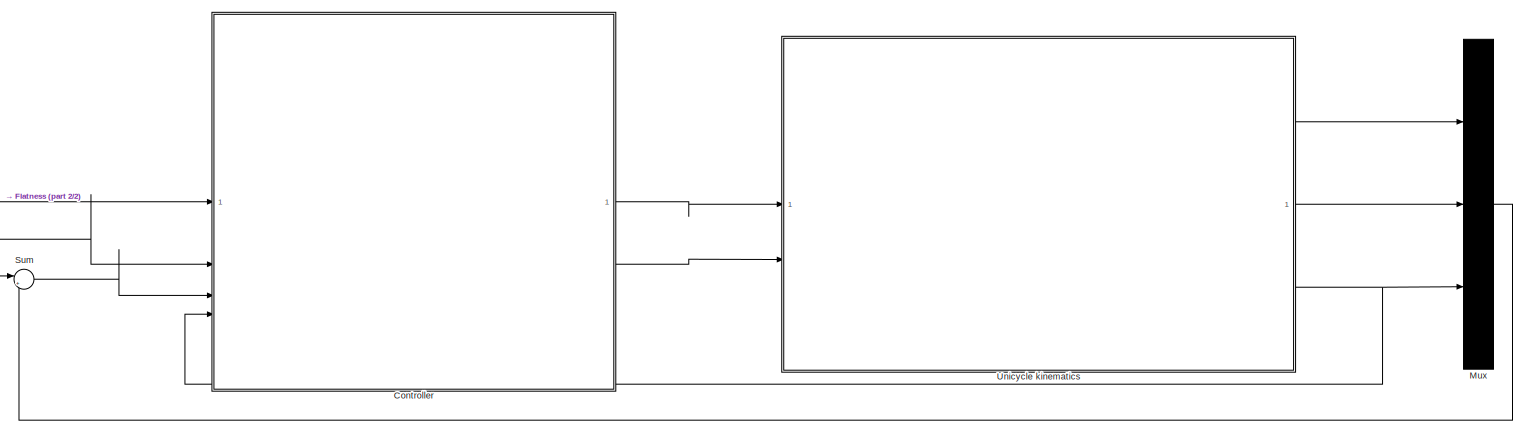
[diagram: root canvas - part 1/2, right side, full height]
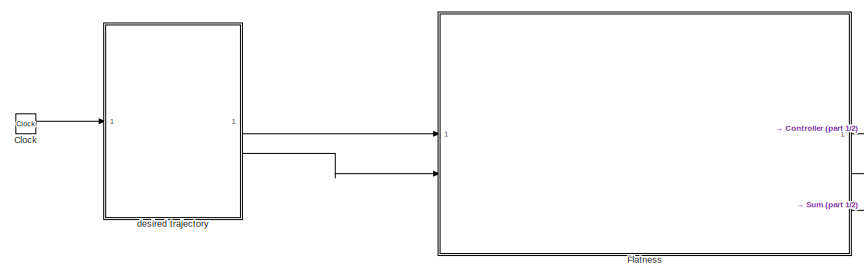
[diagram: root canvas - part 2/2, middle left region]
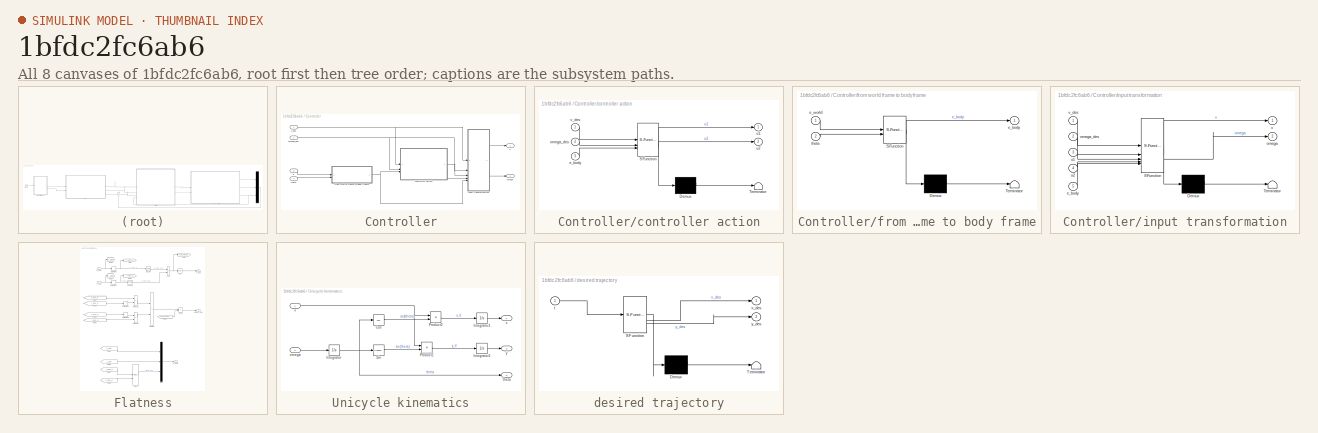
[diagram: thumbnail index - all 8 canvases of the model, root first then tree order]
MODEL slx_1bfdc2fc6ab6
KIND model
CONFIG AbsTol = auto
CONFIG EnableMultiTasking = off
CONFIG FixedStep = auto
CONFIG MaxStep = auto
CONFIG MinStep = auto
CONFIG RelTol = 1e-3
CONFIG SampleTimeConstraint = Unconstrained
CONFIG SolverName = VariableStepAuto
CONFIG StartTime = 0.0
CONFIG StopTime = 10.0
BLOCK [Clock] Clock
BLOCK [SubSystem] Controller
BLOCK [SubSystem] Controller/controller action
  ErrorFcn = Stateflow.Translate.translate
  PermitHierarchicalResolution = ExplicitOnly
  SFBlockType = MATLAB Function
  TreatAsAtomicUnit = on
BLOCK [Demux] Controller/controller action/ Demux 
  Outputs = 1
BLOCK [S-Function] Controller/controller action/ SFunction 
  EnableBusSupport = off
  FunctionName = sf_sfun
  PortCounts = [3 3]
  SFcnIsStateOwnerBlock = off
  SFunctionDeploymentMode = off
  Tag = Stateflow S-Function 1
BLOCK [Terminator] Controller/controller action/ Terminator 
BLOCK [Inport] Controller/controller action/e_body
  Port = 3
BLOCK [Inport] Controller/controller action/omega_des
  Port = 2
BLOCK [Outport] Controller/controller action/u1
BLOCK [Outport] Controller/controller action/u2
  Port = 2
BLOCK [Inport] Controller/controller action/v_des
BLOCK [Inport] Controller/e
  Port = 3
BLOCK [SubSystem] Controller/from world frame to body frame
  ErrorFcn = Stateflow.Translate.translate
  PermitHierarchicalResolution = ExplicitOnly
  SFBlockType = MATLAB Function
  TreatAsAtomicUnit = on
BLOCK [Demux] Controller/from world frame to body frame/ Demux 
  Outputs = 1
BLOCK [S-Function] Controller/from world frame to body frame/ SFunction 
  EnableBusSupport = off
  FunctionName = sf_sfun
  PortCounts = [2 2]
  SFcnIsStateOwnerBlock = off
  SFunctionDeploymentMode = off
  Tag = Stateflow S-Function 2
BLOCK [Terminator] Controller/from world frame to body frame/ Terminator 
BLOCK [Outport] Controller/from world frame to body frame/e_body
BLOCK [Inport] Controller/from world frame to body frame/e_world
BLOCK [Inport] Controller/from world frame to body frame/theta
  Port = 2
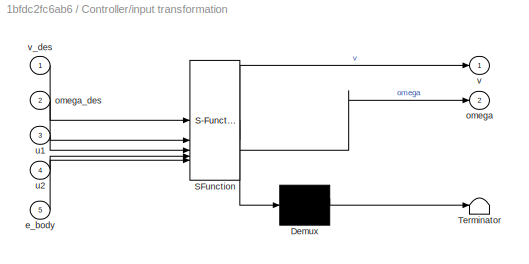
BLOCK [SubSystem] Controller/input transformation
  ErrorFcn = Stateflow.Translate.translate
  PermitHierarchicalResolution = ExplicitOnly
  SFBlockType = MATLAB Function
  TreatAsAtomicUnit = on
BLOCK [Demux] Controller/input transformation/ Demux 
  Outputs = 1
BLOCK [S-Function] Controller/input transformation/ SFunction 
  EnableBusSupport = off
  FunctionName = sf_sfun
  PortCounts = [5 3]
  SFcnIsStateOwnerBlock = off
  SFunctionDeploymentMode = off
  Tag = Stateflow S-Function 3
BLOCK [Terminator] Controller/input transformation/ Terminator 
BLOCK [Inport] Controller/input transformation/e_body
  Port = 5
BLOCK [Outport] Controller/input transformation/omega
  Port = 2
BLOCK [Inport] Controller/input transformation/omega_des
  Port = 2
BLOCK [Inport] Controller/input transformation/u1
  Port = 3
BLOCK [Inport] Controller/input transformation/u2
  Port = 4
BLOCK [Outport] Controller/input transformation/v
BLOCK [Inport] Controller/input transformation/v_des
BLOCK [Outport] Controller/omega
  Port = 2
BLOCK [Inport] Controller/omega_des
  Port = 2
BLOCK [Inport] Controller/theta
  Port = 4
BLOCK [Outport] Controller/v
BLOCK [Inport] Controller/v_des
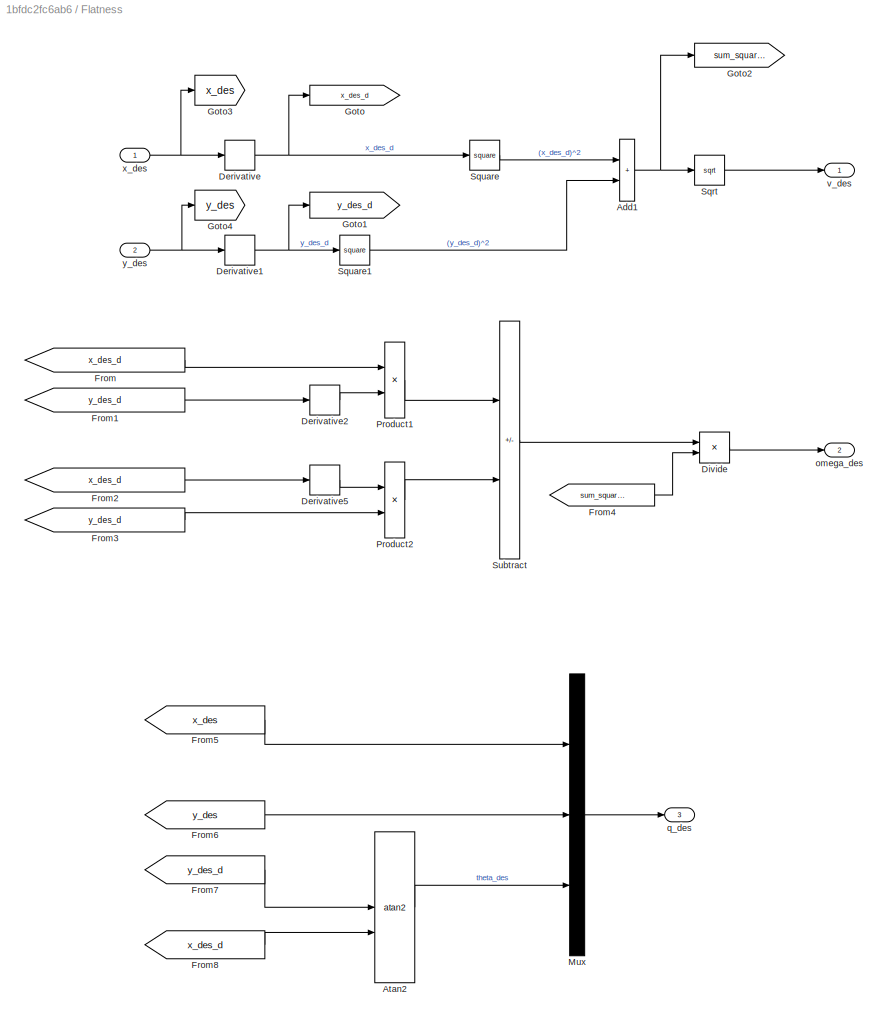
BLOCK [SubSystem] Flatness
BLOCK [Sum] Flatness/Add1
  IconShape = rectangular
BLOCK [Trigonometry] Flatness/Atan2
  Operator = atan2
BLOCK [Derivative] Flatness/Derivative
BLOCK [Derivative] Flatness/Derivative1
BLOCK [Derivative] Flatness/Derivative2
BLOCK [Derivative] Flatness/Derivative5
BLOCK [Product] Flatness/Divide
  Inputs = */
BLOCK [From] Flatness/From
  GotoTag = x_des_d
BLOCK [From] Flatness/From1
  GotoTag = y_des_d
BLOCK [From] Flatness/From2
  GotoTag = x_des_d
BLOCK [From] Flatness/From3
  GotoTag = y_des_d
BLOCK [From] Flatness/From4
  GotoTag = sum_squares
BLOCK [From] Flatness/From5
  GotoTag = x_des
BLOCK [From] Flatness/From6
  GotoTag = y_des
BLOCK [From] Flatness/From7
  GotoTag = y_des_d
BLOCK [From] Flatness/From8
  GotoTag = x_des_d
BLOCK [Goto] Flatness/Goto
  GotoTag = x_des_d
BLOCK [Goto] Flatness/Goto1
  GotoTag = y_des_d
BLOCK [Goto] Flatness/Goto2
  GotoTag = sum_squares
BLOCK [Goto] Flatness/Goto3
  GotoTag = x_des
BLOCK [Goto] Flatness/Goto4
  GotoTag = y_des
BLOCK [Mux] Flatness/Mux
  DisplayOption = bar
  Inputs = 3
BLOCK [Product] Flatness/Product1
BLOCK [Product] Flatness/Product2
BLOCK [Sqrt] Flatness/Sqrt
BLOCK [Math] Flatness/Square
  Operator = square
BLOCK [Math] Flatness/Square1
  Operator = square
BLOCK [Sum] Flatness/Subtract
  IconShape = rectangular
  Inputs = +-
BLOCK [Outport] Flatness/omega_des
  Port = 2
BLOCK [Outport] Flatness/q_des
  Port = 3
BLOCK [Outport] Flatness/v_des
BLOCK [Inport] Flatness/x_des
BLOCK [Inport] Flatness/y_des
  Port = 2
BLOCK [Mux] Mux
  DisplayOption = bar
  Inputs = 3
BLOCK [Sum] Sum
  Inputs = |+-
BLOCK [SubSystem] Unicycle kinematics
BLOCK [Trigonometry] Unicycle kinematics/Cos
  Operator = cos
BLOCK [Integrator] Unicycle kinematics/Integrator
BLOCK [Integrator] Unicycle kinematics/Integrator1
BLOCK [Integrator] Unicycle kinematics/Integrator2
BLOCK [Product] Unicycle kinematics/Product1
BLOCK [Product] Unicycle kinematics/Product2
BLOCK [Trigonometry] Unicycle kinematics/Sin
BLOCK [Inport] Unicycle kinematics/omega
  Port = 2
BLOCK [Outport] Unicycle kinematics/theta
  Port = 3
BLOCK [Inport] Unicycle kinematics/v
BLOCK [Outport] Unicycle kinematics/x
BLOCK [Outport] Unicycle kinematics/y
  Port = 2
BLOCK [SubSystem] desired trajectory
  ErrorFcn = Stateflow.Translate.translate
  PermitHierarchicalResolution = ExplicitOnly
  SFBlockType = MATLAB Function
  TreatAsAtomicUnit = on
BLOCK [Demux] desired trajectory/ Demux 
  Outputs = 1
BLOCK [S-Function] desired trajectory/ SFunction 
  EnableBusSupport = off
  FunctionName = sf_sfun
  PortCounts = [1 3]
  SFcnIsStateOwnerBlock = off
  SFunctionDeploymentMode = off
  Tag = Stateflow S-Function 4
BLOCK [Terminator] desired trajectory/ Terminator 
BLOCK [Inport] desired trajectory/t
BLOCK [Outport] desired trajectory/x_des
BLOCK [Outport] desired trajectory/y_des
  Port = 2
LINE Clock:1 -> desired trajectory:1
LINE Controller/controller action:1 -> Controller/input transformation:3
LINE Controller/controller action:2 -> Controller/input transformation:4
LINE Controller/e:1 -> Controller/from world frame to body frame:1
NET Controller/from world frame to body frame:1 -> Controller/controller action:3, Controller/input transformation:5
LINE Controller/input transformation:1 -> Controller/v:1
LINE Controller/input transformation:2 -> Controller/omega:1
NET Controller/omega_des:1 -> Controller/controller action:2, Controller/input transformation:2
LINE Controller/theta:1 -> Controller/from world frame to body frame:2
NET Controller/v_des:1 -> Controller/controller action:1, Controller/input transformation:1
LINE Controller:1 -> Unicycle kinematics:1
LINE Controller:2 -> Unicycle kinematics:2
NET Flatness/Add1:1 -> Flatness/Goto2:1, Flatness/Sqrt:1
LINE Flatness/Atan2:1 -> Flatness/Mux:3
NET Flatness/Derivative1:1 -> Flatness/Goto1:1, Flatness/Square1:1
LINE Flatness/Derivative2:1 -> Flatness/Product1:2
LINE Flatness/Derivative5:1 -> Flatness/Product2:1
NET Flatness/Derivative:1 -> Flatness/Goto:1, Flatness/Square:1
LINE Flatness/Divide:1 -> Flatness/omega_des:1
LINE Flatness/From1:1 -> Flatness/Derivative2:1
LINE Flatness/From2:1 -> Flatness/Derivative5:1
LINE Flatness/From3:1 -> Flatness/Product2:2
LINE Flatness/From4:1 -> Flatness/Divide:2
LINE Flatness/From5:1 -> Flatness/Mux:1
LINE Flatness/From6:1 -> Flatness/Mux:2
LINE Flatness/From7:1 -> Flatness/Atan2:1
LINE Flatness/From8:1 -> Flatness/Atan2:2
LINE Flatness/From:1 -> Flatness/Product1:1
LINE Flatness/Mux:1 -> Flatness/q_des:1
LINE Flatness/Product1:1 -> Flatness/Subtract:1
LINE Flatness/Product2:1 -> Flatness/Subtract:2
LINE Flatness/Sqrt:1 -> Flatness/v_des:1
LINE Flatness/Square1:1 -> Flatness/Add1:2
LINE Flatness/Square:1 -> Flatness/Add1:1
LINE Flatness/Subtract:1 -> Flatness/Divide:1
NET Flatness/x_des:1 -> Flatness/Derivative:1, Flatness/Goto3:1
NET Flatness/y_des:1 -> Flatness/Derivative1:1, Flatness/Goto4:1
LINE Flatness:1 -> Controller:1
LINE Flatness:2 -> Controller:2
LINE Flatness:3 -> Sum:1
LINE Mux:1 -> Sum:2
LINE Sum:1 -> Controller:3
LINE Unicycle kinematics/Cos:1 -> Unicycle kinematics/Product2:2
LINE Unicycle kinematics/Integrator1:1 -> Unicycle kinematics/x:1
LINE Unicycle kinematics/Integrator2:1 -> Unicycle kinematics/y:1
NET Unicycle kinematics/Integrator:1 -> Unicycle kinematics/Cos:1, Unicycle kinematics/Sin:1, Unicycle kinematics/theta:1
LINE Unicycle kinematics/Product1:1 -> Unicycle kinematics/Integrator2:1
LINE Unicycle kinematics/Product2:1 -> Unicycle kinematics/Integrator1:1
LINE Unicycle kinematics/Sin:1 -> Unicycle kinematics/Product1:2
LINE Unicycle kinematics/omega:1 -> Unicycle kinematics/Integrator:1
NET Unicycle kinematics/v:1 -> Unicycle kinematics/Product1:1, Unicycle kinematics/Product2:1
LINE Unicycle kinematics:1 -> Mux:1
LINE Unicycle kinematics:2 -> Mux:2
NET Unicycle kinematics:3 -> Controller:4, Mux:3
LINE desired trajectory:1 -> Flatness:1
LINE desired trajectory:2 -> Flatness:2
note: NET lines group one-source signal fan-out (src -> all destinations, sorted); 1:1 wires keep LINE
CHART Controller/controller action states=1 transitions=1
  STATE_LABEL 'eML_blk_kernel()'
  STATE_LABEL 'SCRIPT:\nfunction [u1, u2] = fcn(v_des, omega_des, e_body)\n\n% TO DO: parametri da modfiicare\nd = 1/sqrt(2);\na = 10;\n\n\n% parametri controllore\nk1 = 2*d*a;\n\nif abs(v_des) < 1e-4\n    if v_des >= 0\n        v_des = 1e-4;\n    else\n        v_des = -1e-4;\n    end\nend\n\nk3 = k1;\nk2 = ( a^2-(omega_des)^2 ) / v_des;\n\nu1 = [-k1, 0, 0] * e_body;\nu2 = [0, -k2, -k3] * e_body;\n\n'
CHART Controller/from world frame to body frame states=1 transitions=1
  STATE_LABEL 'eML_blk_kernel()'
  STATE_LABEL 'SCRIPT:\nfunction e_body = fcn(e_world, theta)\n\n\n% Transformation matrix\nR = [cos(theta), sin(theta), 0; \n    -sin(theta), cos(theta), 0;\n    0, 0, 1];\n\n% get error in body frame\ne_body = R*e_world;\n'
CHART Controller/input transformation states=1 transitions=1
  STATE_LABEL 'eML_blk_kernel()'
  STATE_LABEL 'SCRIPT:\nfunction [v, omega] = fcn(v_des, omega_des, u1, u2, e_body)\n\n\nv = v_des * cos(e_body(3)) - u1;\nomega = omega_des - u2;\n'
CHART desired trajectory states=1 transitions=1
  STATE_LABEL 'eML_blk_kernel()'
  STATE_LABEL 'SCRIPT:\nfunction [x_des, y_des] = fcn(t)\n\n% configurable:\nradius = 5;\nomega_des = 1;\n\n% desired trajectory\nx_des = radius*cos(omega_des*t);\ny_des = radius*sin(omega_des*t);\n'
CHART  states=0 transitions=0
CHART  states=0 transitions=0
CHART  states=0 transitions=0
CHART  states=0 transitions=0
